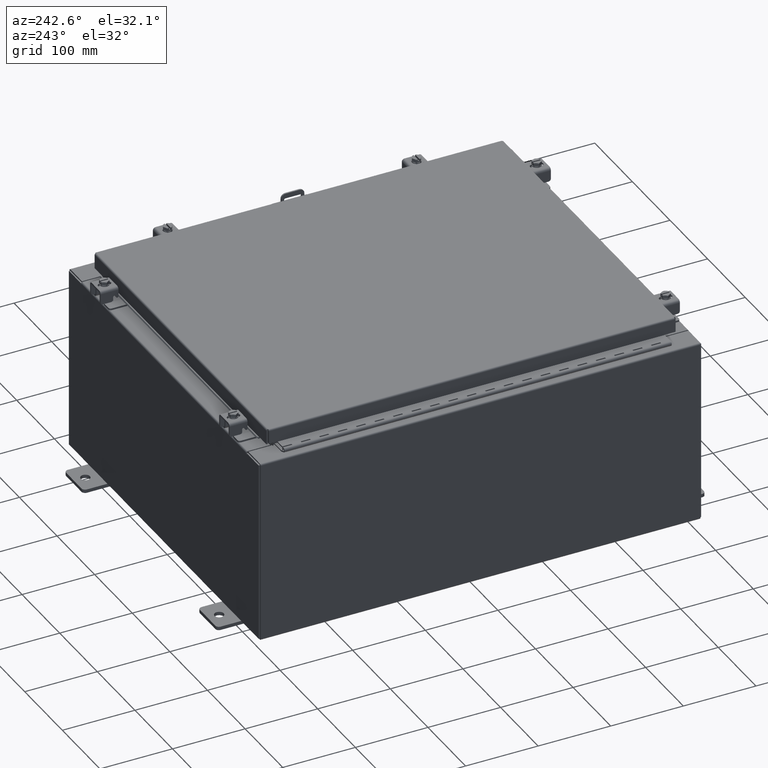
[diagram: clean part render]
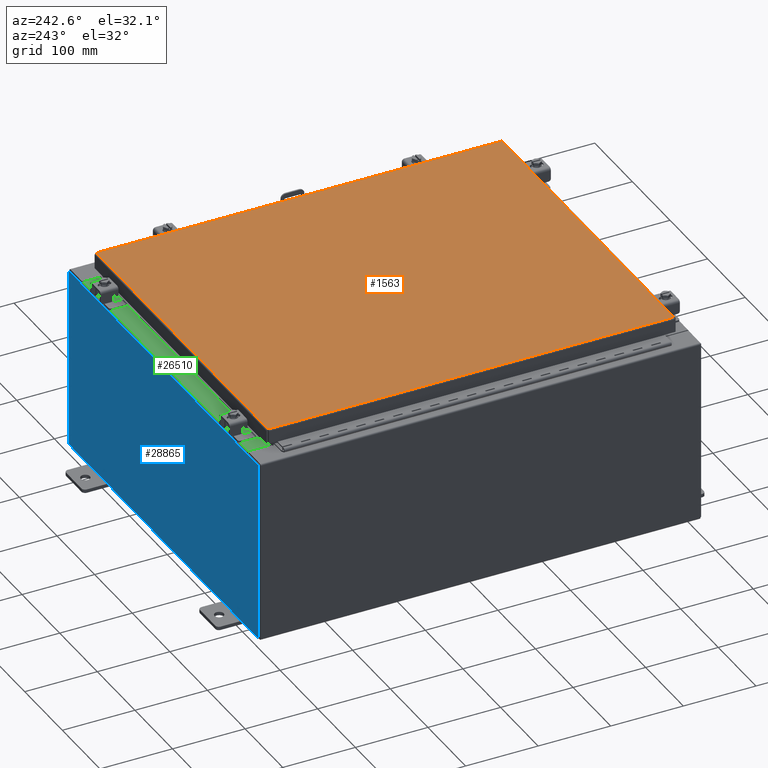
[diagram: same view with three faces highlighted in distinct colors, each labeled with its STEP entity id]
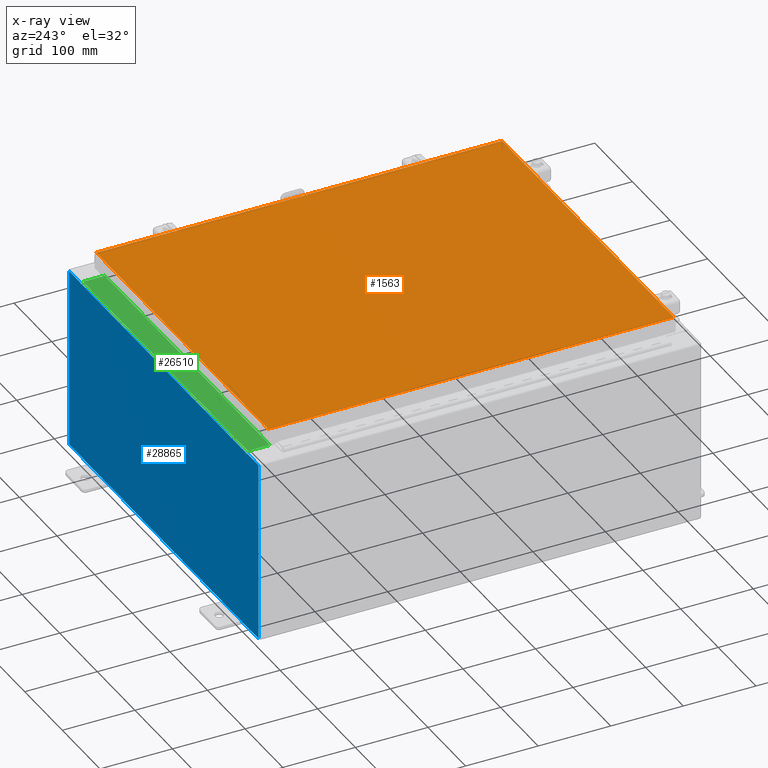
[diagram: x-ray of the same camera — body ghosted, the three highlighted faces saturated]
A machine part, auxiliary view with three faces highlighted in distinct colors.
The next image is the same camera in x-ray (body ghosted, the three faces saturated) — at least one of them is partly hidden behind the body in this view.
Their STEP definitions:

[orange] entity #1563 — the highlighted planar face has unit normal (0, 0, -1).
#1563 = ADVANCED_FACE ( 'NONE', ( #19255 ), #1898, .F. ) ;
#1870 = DIRECTION ( 'NONE',  ( -1.000000000000000000, 0.0000000000000000000, -0.0000000000000000000 ) ) ;
#1892 = DIRECTION ( 'NONE',  ( 0.0000000000000000000, 0.0000000000000000000, -1.000000000000000000 ) ) ;
#1898 = PLANE ( 'NONE',  #19379 ) ;
#1963 = CARTESIAN_POINT ( 'NONE',  ( 0.0000000000000000000, 0.0000000000000000000, 0.0000000000000000000 ) ) ;
#2740 = LINE ( 'NONE', #19422, #2865 ) ;
#2865 = VECTOR ( 'NONE', #6198, 39.37007874015748100 ) ;
#3101 = LINE ( 'NONE', #27185, #30529 ) ;
#3153 = EDGE_CURVE ( 'NONE', #22675, #8393, #3101, .T. ) ;
#4494 = LINE ( 'NONE', #13347, #15674 ) ;
#6198 = DIRECTION ( 'NONE',  ( -1.000000000000000000, -0.0000000000000000000, -0.0000000000000000000 ) ) ;
#6802 = VERTEX_POINT ( 'NONE', #17232 ) ;
#8393 = VERTEX_POINT ( 'NONE', #23005 ) ;
#8915 = EDGE_CURVE ( 'NONE', #8393, #23109, #2740, .T. ) ;
#9190 = EDGE_LOOP ( 'NONE', ( #15138, #21408, #26394, #30275 ) ) ;
#9839 = EDGE_CURVE ( 'NONE', #6802, #22675, #4494, .T. ) ;
#12330 = LINE ( 'NONE', #26854, #31342 ) ;
#13347 = CARTESIAN_POINT ( 'NONE',  ( -8.990300000000001300, -11.00630000000000100, 8.878505979408856000E-016 ) ) ;
#14594 = EDGE_CURVE ( 'NONE', #23109, #6802, #12330, .T. ) ;
#15138 = ORIENTED_EDGE ( 'NONE', *, *, #9839, .T. ) ;
#15674 = VECTOR ( 'NONE', #17547, 39.37007874015748100 ) ;
#17232 = CARTESIAN_POINT ( 'NONE',  ( -8.990300000000001300, -11.00630000000000100, 8.878505979408856000E-016 ) ) ;
#17547 = DIRECTION ( 'NONE',  ( 1.000000000000000000, -0.0000000000000000000, -0.0000000000000000000 ) ) ;
#18462 = CARTESIAN_POINT ( 'NONE',  ( -8.990299999999999500, 11.00630000000000100, -2.048885995248197400E-016 ) ) ;
#19255 = FACE_OUTER_BOUND ( 'NONE', #9190, .T. ) ;
#19379 = AXIS2_PLACEMENT_3D ( 'NONE', #1963, #1892, #1870 ) ;
#19422 = CARTESIAN_POINT ( 'NONE',  ( 8.990299999999999500, 11.00630000000000000, -2.048885995248197400E-016 ) ) ;
#21408 = ORIENTED_EDGE ( 'NONE', *, *, #3153, .T. ) ;
#22675 = VERTEX_POINT ( 'NONE', #27358 ) ;
#23005 = CARTESIAN_POINT ( 'NONE',  ( 8.990299999999999500, 11.00630000000000000, -2.048885995248197400E-016 ) ) ;
#23109 = VERTEX_POINT ( 'NONE', #18462 ) ;
#26394 = ORIENTED_EDGE ( 'NONE', *, *, #8915, .T. ) ;
#26854 = CARTESIAN_POINT ( 'NONE',  ( -8.990299999999999500, 11.00630000000000100, -2.048885995248197400E-016 ) ) ;
#27185 = CARTESIAN_POINT ( 'NONE',  ( 8.990299999999997700, -11.00630000000000000, -2.048885995248197400E-016 ) ) ;
#27358 = CARTESIAN_POINT ( 'NONE',  ( 8.990299999999997700, -11.00630000000000000, -2.048885995248197400E-016 ) ) ;
#27688 = DIRECTION ( 'NONE',  ( 0.0000000000000000000, -1.000000000000000000, 0.0000000000000000000 ) ) ;
#28307 = DIRECTION ( 'NONE',  ( 0.0000000000000000000, 1.000000000000000000, 0.0000000000000000000 ) ) ;
#30275 = ORIENTED_EDGE ( 'NONE', *, *, #14594, .T. ) ;
#30529 = VECTOR ( 'NONE', #28307, 39.37007874015748100 ) ;
#31342 = VECTOR ( 'NONE', #27688, 39.37007874015748100 ) ;

[blue] entity #28865 — the highlighted planar face has unit normal (0, -1, 0).
#419 = EDGE_CURVE ( 'NONE', #24262, #16757, #9253, .T. ) ;
#707 = VECTOR ( 'NONE', #10716, 39.37007874015748100 ) ;
#883 = LINE ( 'NONE', #18922, #22324 ) ;
#885 = VECTOR ( 'NONE', #1031, 39.37007874015748100 ) ;
#1020 = CARTESIAN_POINT ( 'NONE',  ( 9.925300000000000000, 0.0000000000000000000, 4.925300000000000000 ) ) ;
#1031 = DIRECTION ( 'NONE',  ( 0.0000000000000000000, 0.0000000000000000000, -1.000000000000000000 ) ) ;
#1074 = LINE ( 'NONE', #28897, #30284 ) ;
#1103 = LINE ( 'NONE', #4776, #2869 ) ;
#1207 = DIRECTION ( 'NONE',  ( 1.000000000000000000, 0.0000000000000000000, 0.0000000000000000000 ) ) ;
#1469 = ORIENTED_EDGE ( 'NONE', *, *, #20372, .T. ) ;
#1716 = CIRCLE ( 'NONE', #4190, 0.01867500000000003900 ) ;
#2210 = EDGE_CURVE ( 'NONE', #6593, #23947, #10793, .T. ) ;
#2238 = DIRECTION ( 'NONE',  ( 0.0000000000000000000, 0.0000000000000000000, 1.000000000000000000 ) ) ;
#2394 = CARTESIAN_POINT ( 'NONE',  ( 8.637200000000000000, 0.0000000000000000000, 4.912300000000000100 ) ) ;
#2869 = VECTOR ( 'NONE', #2238, 39.37007874015748100 ) ;
#3094 = CARTESIAN_POINT ( 'NONE',  ( -8.637199999999996400, -0.0000000000000000000, 4.874950000000000100 ) ) ;
#3423 = CARTESIAN_POINT ( 'NONE',  ( -9.925300000000000000, 0.0000000000000000000, 4.925300000000000000 ) ) ;
#4190 = AXIS2_PLACEMENT_3D ( 'NONE', #19856, #19678, #19269 ) ;
#4313 = DIRECTION ( 'NONE',  ( 1.000000000000000000, 0.0000000000000000000, 0.0000000000000000000 ) ) ;
#4358 = PLANE ( 'NONE',  #5463 ) ;
#4776 = CARTESIAN_POINT ( 'NONE',  ( -8.674549999999996400, -0.0000000000000000000, 0.0000000000000000000 ) ) ;
#5296 = LINE ( 'NONE', #22019, #7310 ) ;
#5335 = ORIENTED_EDGE ( 'NONE', *, *, #25394, .F. ) ;
#5463 = AXIS2_PLACEMENT_3D ( 'NONE', #6589, #7843, #19569 ) ;
#5961 = VERTEX_POINT ( 'NONE', #8382 ) ;
#6052 = EDGE_CURVE ( 'NONE', #9035, #30953, #1074, .T. ) ;
#6589 = CARTESIAN_POINT ( 'NONE',  ( 0.0000000000000000000, 0.0000000000000000000, 0.0000000000000000000 ) ) ;
#6593 = VERTEX_POINT ( 'NONE', #24804 ) ;
#7174 = CARTESIAN_POINT ( 'NONE',  ( -9.925300000000000000, 0.0000000000000000000, -4.925300000000000000 ) ) ;
#7310 = VECTOR ( 'NONE', #22017, 39.37007874015748100 ) ;
#7843 = DIRECTION ( 'NONE',  ( 0.0000000000000000000, -1.000000000000000000, 0.0000000000000000000 ) ) ;
#8382 = CARTESIAN_POINT ( 'NONE',  ( -8.674549999999996400, 0.0000000000000000000, 4.874950000000000100 ) ) ;
#8390 = VECTOR ( 'NONE', #11809, 39.37007874015748100 ) ;
#9035 = VERTEX_POINT ( 'NONE', #31797 ) ;
#9064 = CARTESIAN_POINT ( 'NONE',  ( 9.925300000000000000, 0.0000000000000000000, 4.925300000000000000 ) ) ;
#9253 = LINE ( 'NONE', #16847, #24987 ) ;
#9966 = CARTESIAN_POINT ( 'NONE',  ( -9.925300000000000000, 0.0000000000000000000, 4.925300000000000000 ) ) ;
#10159 = ORIENTED_EDGE ( 'NONE', *, *, #419, .F. ) ;
#10716 = DIRECTION ( 'NONE',  ( 0.0000000000000000000, 0.0000000000000000000, 1.000000000000000000 ) ) ;
#10793 = LINE ( 'NONE', #11619, #8390 ) ;
#11028 = CARTESIAN_POINT ( 'NONE',  ( 8.674550000000000000, 0.0000000000000000000, 4.874950000000000100 ) ) ;
#11619 = CARTESIAN_POINT ( 'NONE',  ( -9.925300000000000000, 0.0000000000000000000, -4.925300000000000000 ) ) ;
#11672 = DIRECTION ( 'NONE',  ( 0.0000000000000000000, 0.0000000000000000000, -1.000000000000000000 ) ) ;
#11781 = DIRECTION ( 'NONE',  ( -0.0000000000000000000, 1.000000000000000000, -0.0000000000000000000 ) ) ;
#11809 = DIRECTION ( 'NONE',  ( -1.000000000000000000, -0.0000000000000000000, -0.0000000000000000000 ) ) ;
#11822 = CARTESIAN_POINT ( 'NONE',  ( -8.655874999999996400, 0.0000000000000000000, 4.874950000000000100 ) ) ;
#12748 = AXIS2_PLACEMENT_3D ( 'NONE', #11822, #11781, #11672 ) ;
#12951 = LINE ( 'NONE', #3423, #22726 ) ;
#13315 = LINE ( 'NONE', #9064, #885 ) ;
#14035 = CARTESIAN_POINT ( 'NONE',  ( 8.637200000000000000, 0.0000000000000000000, 0.0000000000000000000 ) ) ;
#14068 = ORIENTED_EDGE ( 'NONE', *, *, #17178, .F. ) ;
#14717 = ORIENTED_EDGE ( 'NONE', *, *, #28731, .T. ) ;
#15348 = EDGE_CURVE ( 'NONE', #29803, #26426, #15570, .T. ) ;
#15361 = ORIENTED_EDGE ( 'NONE', *, *, #15348, .T. ) ;
#15570 = LINE ( 'NONE', #18350, #15908 ) ;
#15908 = VECTOR ( 'NONE', #1207, 39.37007874015748100 ) ;
#16026 = DIRECTION ( 'NONE',  ( -0.0000000000000000000, -0.0000000000000000000, 1.000000000000000000 ) ) ;
#16301 = EDGE_CURVE ( 'NONE', #17607, #6593, #13315, .T. ) ;
#16720 = DIRECTION ( 'NONE',  ( -6.510859170600007400E-014, 0.0000000000000000000, -1.000000000000000000 ) ) ;
#16757 = VERTEX_POINT ( 'NONE', #11028 ) ;
#16807 = EDGE_CURVE ( 'NONE', #24262, #17607, #5296, .T. ) ;
#16847 = CARTESIAN_POINT ( 'NONE',  ( 8.674549999999683800, -0.0000000000000000000, -5.647877341832623900E-013 ) ) ;
#17178 = EDGE_CURVE ( 'NONE', #30953, #5961, #25233, .T. ) ;
#17607 = VERTEX_POINT ( 'NONE', #1020 ) ;
#18350 = CARTESIAN_POINT ( 'NONE',  ( -9.925300000000000000, 0.0000000000000000000, 4.925300000000000000 ) ) ;
#18526 = ORIENTED_EDGE ( 'NONE', *, *, #16301, .T. ) ;
#18805 = CARTESIAN_POINT ( 'NONE',  ( -8.674549999999996400, 0.0000000000000000000, 4.925300000000000000 ) ) ;
#18922 = CARTESIAN_POINT ( 'NONE',  ( -8.637200000000000000, -7.171100983368691200E-016, 4.912300000000000100 ) ) ;
#19269 = DIRECTION ( 'NONE',  ( 0.0000000000000000000, 0.0000000000000000000, -1.000000000000000000 ) ) ;
#19569 = DIRECTION ( 'NONE',  ( 0.0000000000000000000, -0.0000000000000000000, -1.000000000000000000 ) ) ;
#19678 = DIRECTION ( 'NONE',  ( -0.0000000000000000000, 1.000000000000000000, -0.0000000000000000000 ) ) ;
#19856 = CARTESIAN_POINT ( 'NONE',  ( 8.655875000000000000, 0.0000000000000000000, 4.874950000000000100 ) ) ;
#20067 = EDGE_LOOP ( 'NONE', ( #20337, #14068, #32610, #14717, #5335, #27403, #10159, #24206, #18526, #26492, #1469, #15361 ) ) ;
#20337 = ORIENTED_EDGE ( 'NONE', *, *, #27913, .F. ) ;
#20372 = EDGE_CURVE ( 'NONE', #23947, #29803, #12951, .T. ) ;
#21204 = VERTEX_POINT ( 'NONE', #2394 ) ;
#22017 = DIRECTION ( 'NONE',  ( 1.000000000000000000, 0.0000000000000000000, 0.0000000000000000000 ) ) ;
#22019 = CARTESIAN_POINT ( 'NONE',  ( -9.925300000000000000, 0.0000000000000000000, 4.925300000000000000 ) ) ;
#22324 = VECTOR ( 'NONE', #4313, 39.37007874015748100 ) ;
#22608 = CARTESIAN_POINT ( 'NONE',  ( 8.637200000000000000, 0.0000000000000000000, 4.874950000000000100 ) ) ;
#22726 = VECTOR ( 'NONE', #16026, 39.37007874015748100 ) ;
#23176 = CARTESIAN_POINT ( 'NONE',  ( 8.674550000000001800, 0.0000000000000000000, 4.925300000000000000 ) ) ;
#23767 = EDGE_CURVE ( 'NONE', #16757, #24172, #1716, .T. ) ;
#23947 = VERTEX_POINT ( 'NONE', #7174 ) ;
#24172 = VERTEX_POINT ( 'NONE', #22608 ) ;
#24206 = ORIENTED_EDGE ( 'NONE', *, *, #16807, .T. ) ;
#24262 = VERTEX_POINT ( 'NONE', #23176 ) ;
#24804 = CARTESIAN_POINT ( 'NONE',  ( 9.925300000000000000, 0.0000000000000000000, -4.925300000000000000 ) ) ;
#24987 = VECTOR ( 'NONE', #16720, 39.37007874015748100 ) ;
#25214 = FACE_OUTER_BOUND ( 'NONE', #20067, .T. ) ;
#25233 = CIRCLE ( 'NONE', #12748, 0.01867500000000003900 ) ;
#25394 = EDGE_CURVE ( 'NONE', #24172, #21204, #26947, .T. ) ;
#26426 = VERTEX_POINT ( 'NONE', #18805 ) ;
#26492 = ORIENTED_EDGE ( 'NONE', *, *, #2210, .T. ) ;
#26947 = LINE ( 'NONE', #14035, #707 ) ;
#27403 = ORIENTED_EDGE ( 'NONE', *, *, #23767, .F. ) ;
#27483 = DIRECTION ( 'NONE',  ( 0.0000000000000000000, 0.0000000000000000000, -1.000000000000000000 ) ) ;
#27913 = EDGE_CURVE ( 'NONE', #5961, #26426, #1103, .T. ) ;
#28731 = EDGE_CURVE ( 'NONE', #9035, #21204, #883, .T. ) ;
#28865 = ADVANCED_FACE ( 'NONE', ( #25214 ), #4358, .F. ) ;
#28897 = CARTESIAN_POINT ( 'NONE',  ( -8.637199999999996400, -0.0000000000000000000, 0.0000000000000000000 ) ) ;
#29803 = VERTEX_POINT ( 'NONE', #9966 ) ;
#30284 = VECTOR ( 'NONE', #27483, 39.37007874015748100 ) ;
#30953 = VERTEX_POINT ( 'NONE', #3094 ) ;
#31797 = CARTESIAN_POINT ( 'NONE',  ( -8.637199999999996400, -7.171100983368691200E-016, 4.912300000000000100 ) ) ;
#32610 = ORIENTED_EDGE ( 'NONE', *, *, #6052, .F. ) ;

[green] entity #26510 — the highlighted planar face has unit normal (0, 0, 1).
#528 = CARTESIAN_POINT ( 'NONE',  ( -8.637200000000000000, -1.287299999999999200, 5.000000000000004400 ) ) ;
#1345 = DIRECTION ( 'NONE',  ( -1.000000000000000000, 0.0000000000000000000, 0.0000000000000000000 ) ) ;
#1520 = CARTESIAN_POINT ( 'NONE',  ( 8.637200000000000000, -1.287299999999999900, 5.000000000000003600 ) ) ;
#3062 = AXIS2_PLACEMENT_3D ( 'NONE', #15310, #13304, #32952 ) ;
#3921 = VECTOR ( 'NONE', #24195, 39.37007874015748100 ) ;
#4437 = VECTOR ( 'NONE', #12800, 39.37007874015748100 ) ;
#4943 = ORIENTED_EDGE ( 'NONE', *, *, #6505, .F. ) ;
#6505 = EDGE_CURVE ( 'NONE', #24764, #7278, #7115, .T. ) ;
#7115 = LINE ( 'NONE', #32263, #18272 ) ;
#7278 = VERTEX_POINT ( 'NONE', #18098 ) ;
#8494 = VERTEX_POINT ( 'NONE', #12022 ) ;
#9639 = CARTESIAN_POINT ( 'NONE',  ( 5.547702242495411600E-018, -0.08770000000000081900, 5.000000000000000000 ) ) ;
#10591 = LINE ( 'NONE', #9639, #4437 ) ;
#11926 = LINE ( 'NONE', #24159, #3921 ) ;
#12022 = CARTESIAN_POINT ( 'NONE',  ( 8.637200000000000000, -1.287299999999999900, 5.000000000000004400 ) ) ;
#12800 = DIRECTION ( 'NONE',  ( -1.000000000000000000, -6.325772226333218300E-017, 2.256011509776178200E-031 ) ) ;
#13304 = DIRECTION ( 'NONE',  ( 0.0000000000000000000, 3.566381192773190000E-015, 1.000000000000000000 ) ) ;
#14908 = FACE_OUTER_BOUND ( 'NONE', #25079, .T. ) ;
#15310 = CARTESIAN_POINT ( 'NONE',  ( 0.0000000000000000000, 1.782631094477737600E-014, 5.000000000000000000 ) ) ;
#16593 = DIRECTION ( 'NONE',  ( -0.0000000000000000000, 1.000000000000000000, -3.566381192773190000E-015 ) ) ;
#18098 = CARTESIAN_POINT ( 'NONE',  ( -8.637200000000000000, -0.08770000000000081900, 5.000000000000000000 ) ) ;
#18272 = VECTOR ( 'NONE', #16593, 39.37007874015748100 ) ;
#18343 = EDGE_CURVE ( 'NONE', #8494, #24764, #23779, .T. ) ;
#18828 = EDGE_CURVE ( 'NONE', #19651, #8494, #11926, .T. ) ;
#19651 = VERTEX_POINT ( 'NONE', #32317 ) ;
#21385 = ORIENTED_EDGE ( 'NONE', *, *, #18343, .F. ) ;
#23380 = PLANE ( 'NONE',  #3062 ) ;
#23750 = VECTOR ( 'NONE', #1345, 39.37007874015748100 ) ;
#23779 = LINE ( 'NONE', #1520, #23750 ) ;
#24159 = CARTESIAN_POINT ( 'NONE',  ( 8.637200000000000000, -1.300299999999999800, 5.000000000000004400 ) ) ;
#24195 = DIRECTION ( 'NONE',  ( -0.0000000000000000000, -1.000000000000000000, 3.566381192773190000E-015 ) ) ;
#24764 = VERTEX_POINT ( 'NONE', #528 ) ;
#25079 = EDGE_LOOP ( 'NONE', ( #4943, #21385, #27441, #30965 ) ) ;
#26510 = ADVANCED_FACE ( 'NONE', ( #14908 ), #23380, .T. ) ;
#27441 = ORIENTED_EDGE ( 'NONE', *, *, #18828, .F. ) ;
#28911 = EDGE_CURVE ( 'NONE', #19651, #7278, #10591, .T. ) ;
#30965 = ORIENTED_EDGE ( 'NONE', *, *, #28911, .T. ) ;
#32263 = CARTESIAN_POINT ( 'NONE',  ( -8.637200000000000000, -0.07469999999999973900, 5.000000000000000000 ) ) ;
#32317 = CARTESIAN_POINT ( 'NONE',  ( 8.637200000000000000, -0.08770000000000047200, 5.000000000000000000 ) ) ;
#32952 = DIRECTION ( 'NONE',  ( 0.0000000000000000000, -1.000000000000000000, 3.566381192773190000E-015 ) ) ;